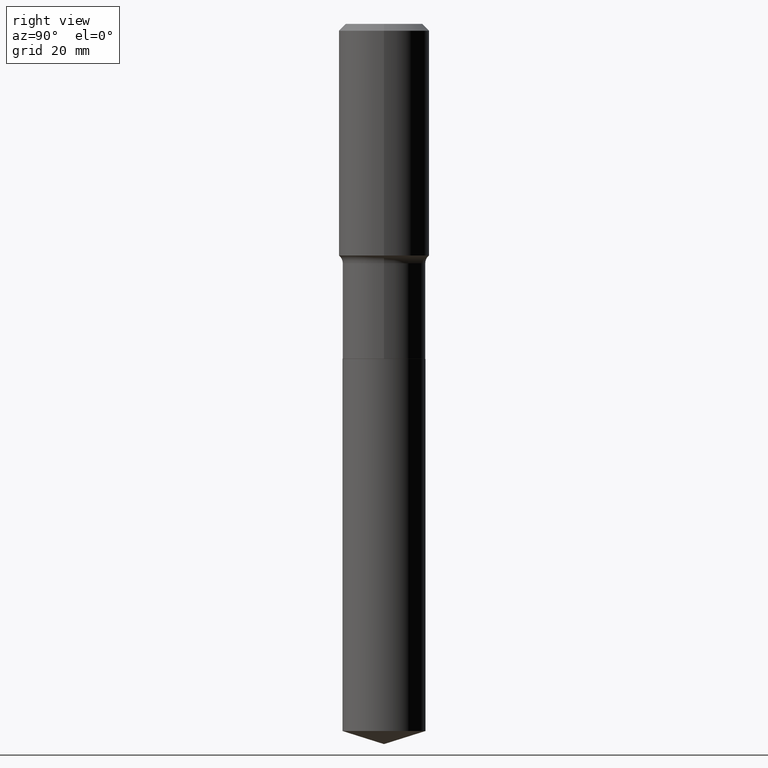
[diagram: clean part render]
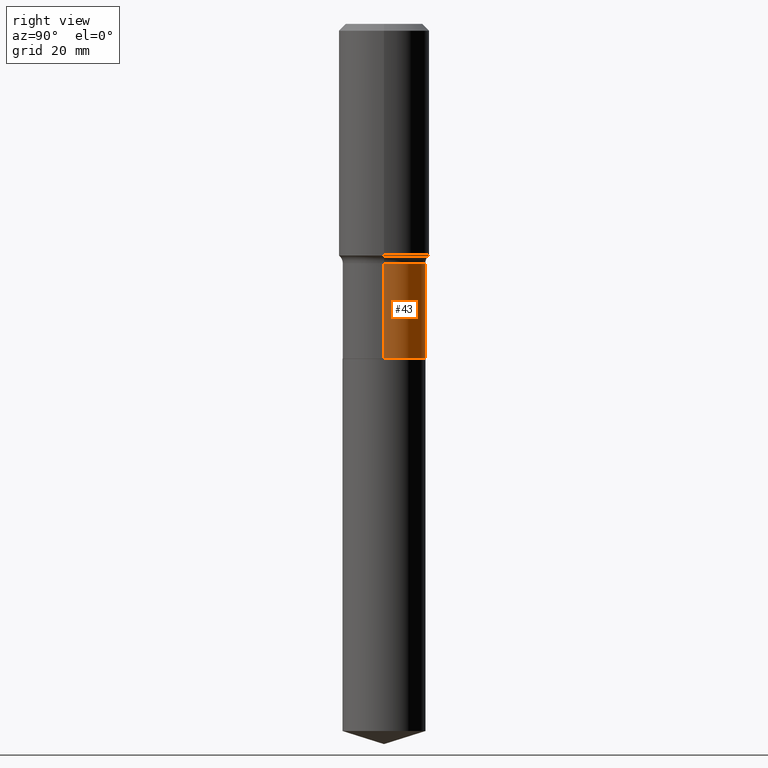
[diagram: same view with one face highlighted and labeled with its STEP entity id]
A machine part, right view. The second image highlights one B-rep face of the part: STEP entity #43.
In plain terms, the highlighted cylindrical surface (partial cylindrical patch) has radius 8.2499 mm, axis along (-0, 0, 1).
Its self-contained STEP definition (entity closure, byte-faithful):
#3 = CIRCLE ( 'NONE', #343, 0.3247999999999999776 ) ;
#17 = VERTEX_POINT ( 'NONE', #468 ) ;
#20 = VERTEX_POINT ( 'NONE', #84 ) ;
#25 = CARTESIAN_POINT ( 'NONE',  ( 0.000000000000000000, 0.000000000000000000, 0.000000000000000000 ) ) ;
#43 = ADVANCED_FACE ( 'NONE', ( #83 ), #232, .T. ) ;
#47 = EDGE_CURVE ( 'NONE', #17, #20, #431, .T. ) ;
#55 = DIRECTION ( 'NONE',  ( -2.445468806185136597E-29, 3.491481338843145583E-15, 1.000000000000000000 ) ) ;
#58 = CARTESIAN_POINT ( 'NONE',  ( 0.3247999999999999221, -8.800977010821908091E-15, -1.871100000000000207 ) ) ;
#59 = AXIS2_PLACEMENT_3D ( 'NONE', #25, #360, #281 ) ;
#69 = EDGE_CURVE ( 'NONE', #101, #20, #186, .T. ) ;
#75 = DIRECTION ( 'NONE',  ( -2.445468806185136597E-29, 3.491481338843145583E-15, 1.000000000000000000 ) ) ;
#76 = ORIENTED_EDGE ( 'NONE', *, *, #253, .T. ) ;
#83 = FACE_OUTER_BOUND ( 'NONE', #208, .T. ) ;
#84 = CARTESIAN_POINT ( 'NONE',  ( -0.3247999999999999221, -5.528263337083809819E-15, -1.871100000000000207 ) ) ;
#101 = VERTEX_POINT ( 'NONE', #58 ) ;
#110 = DIRECTION ( 'NONE',  ( -2.445468806185136877E-29, 3.491481338843145188E-15, 1.000000000000000000 ) ) ;
#113 = CARTESIAN_POINT ( 'NONE',  ( 0.3247999999999999776, -1.140736783026831626E-14, -2.617599999999999927 ) ) ;
#120 = LINE ( 'NONE', #428, #456 ) ;
#186 = CIRCLE ( 'NONE', #216, 0.3247999999999999221 ) ;
#194 = CARTESIAN_POINT ( 'NONE',  ( 4.575716683253009173E-29, -6.532910733109410979E-15, -1.871100000000000207 ) ) ;
#208 = EDGE_LOOP ( 'NONE', ( #76, #406, #483, #225 ) ) ;
#216 = AXIS2_PLACEMENT_3D ( 'NONE', #194, #55, #439 ) ;
#225 = ORIENTED_EDGE ( 'NONE', *, *, #437, .F. ) ;
#232 = CYLINDRICAL_SURFACE ( 'NONE', #59, 0.3247999999999999221 ) ;
#253 = EDGE_CURVE ( 'NONE', #272, #17, #3, .T. ) ;
#272 = VERTEX_POINT ( 'NONE', #113 ) ;
#281 = DIRECTION ( 'NONE',  ( 1.000000000000000000, -6.982962677686265922E-15, 4.876176775795934672E-29 ) ) ;
#309 = VECTOR ( 'NONE', #395, 39.37007874015748143 ) ;
#343 = AXIS2_PLACEMENT_3D ( 'NONE', #372, #75, #455 ) ;
#360 = DIRECTION ( 'NONE',  ( -2.445468806185136597E-29, 3.491481338843145583E-15, 1.000000000000000000 ) ) ;
#372 = CARTESIAN_POINT ( 'NONE',  ( 6.401259147070212571E-29, -9.139301552555818359E-15, -2.617599999999999927 ) ) ;
#395 = DIRECTION ( 'NONE',  ( -2.445468806185136877E-29, 3.491481338843145188E-15, 1.000000000000000000 ) ) ;
#406 = ORIENTED_EDGE ( 'NONE', *, *, #47, .T. ) ;
#428 = CARTESIAN_POINT ( 'NONE',  ( 0.3247999999999999221, -2.268066277712498689E-15, 1.583782216778519264E-29 ) ) ;
#431 = LINE ( 'NONE', #436, #309 ) ;
#436 = CARTESIAN_POINT ( 'NONE',  ( -0.3247999999999999221, 2.307842805748804850E-15, -1.597670117314792893E-29 ) ) ;
#437 = EDGE_CURVE ( 'NONE', #272, #101, #120, .T. ) ;
#439 = DIRECTION ( 'NONE',  ( 1.000000000000000000, -6.982962677686265133E-15, 0.000000000000000000 ) ) ;
#455 = DIRECTION ( 'NONE',  ( 1.000000000000000000, -6.982962677686265922E-15, 0.000000000000000000 ) ) ;
#456 = VECTOR ( 'NONE', #110, 39.37007874015748143 ) ;
#468 = CARTESIAN_POINT ( 'NONE',  ( -0.3247999999999999776, -5.528263337083809030E-15, -2.617599999999999927 ) ) ;
#483 = ORIENTED_EDGE ( 'NONE', *, *, #69, .F. ) ;